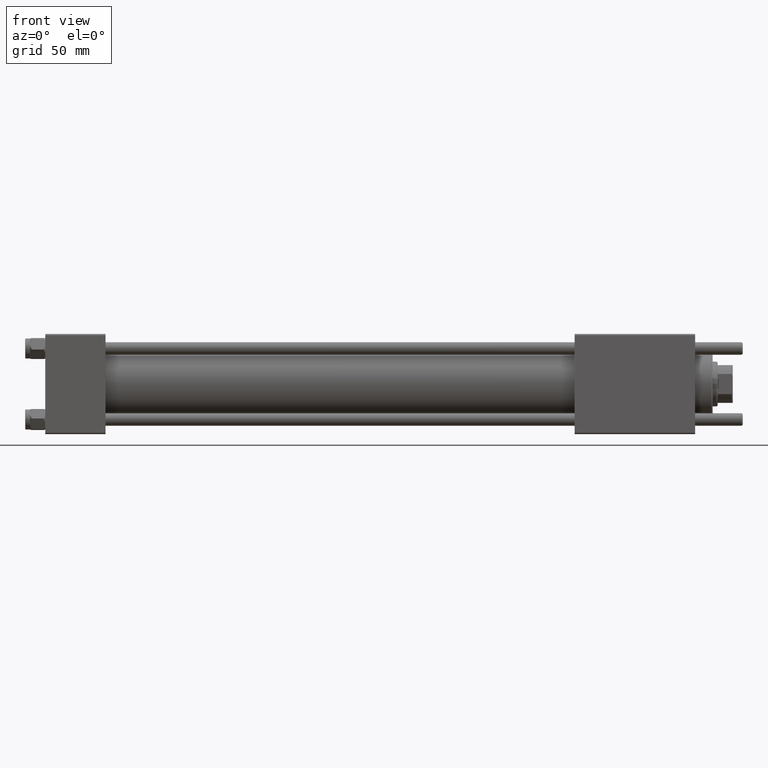
[diagram: clean part render]
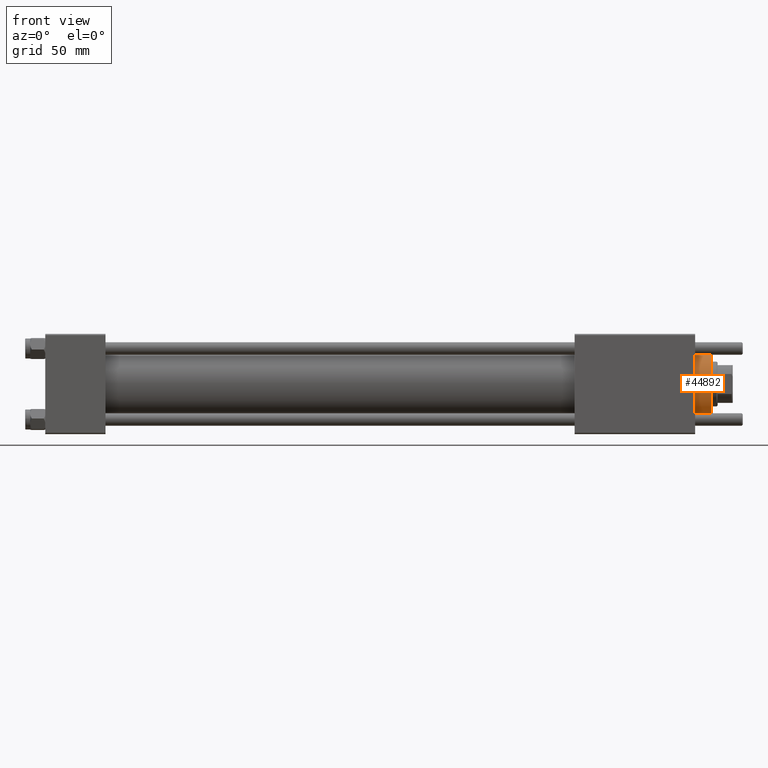
[diagram: same view with one face highlighted and labeled with its STEP entity id]
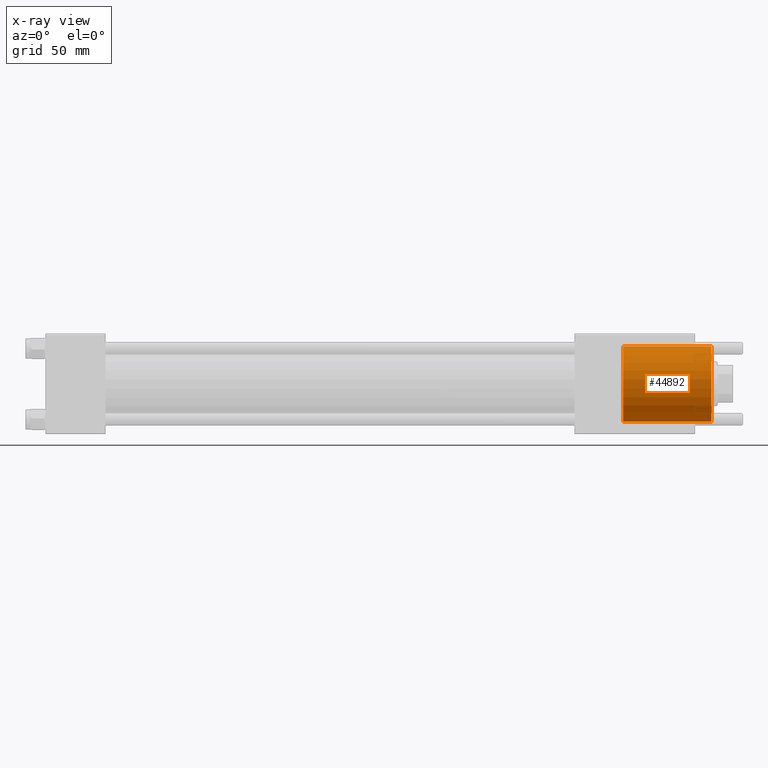
[diagram: x-ray of the same camera — body ghosted, the highlighted face saturated]
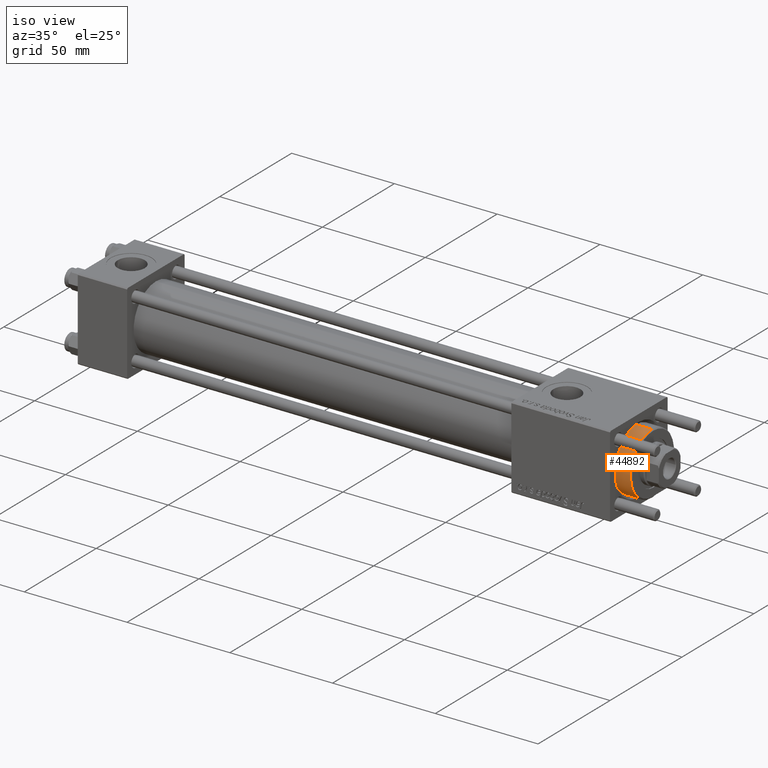
[diagram: same view with one face highlighted and labeled with its STEP entity id]
A machine part, front view. The second image highlights one B-rep face of the part: STEP entity #44892.
The next image is the same camera in x-ray: the body ghosted, the highlighted face saturated — about 0% of this face is hidden behind the body in this view.
A second angle (iso view) of the same face is appended — the face is thin or edge-on in the first view.
In plain terms, the highlighted cylindrical surface (partial cylindrical patch) has radius 15 mm, axis along (-1, -0, 0).
Its self-contained STEP definition (entity closure, byte-faithful):
#224 = VECTOR ( 'NONE', #24141, 1000.000000000000000 ) ;
#2925 = VECTOR ( 'NONE', #24694, 1000.000000000000000 ) ;
#8482 = ORIENTED_EDGE ( 'NONE', *, *, #28226, .T. ) ;
#10317 = CARTESIAN_POINT ( 'NONE',  ( 0.000000000000000000, 0.000000000000000000, 35.19999999999999574 ) ) ;
#11468 = DIRECTION ( 'NONE',  ( 1.000000000000000000, 0.000000000000000000, 0.000000000000000000 ) ) ;
#14013 = VERTEX_POINT ( 'NONE', #28919 ) ;
#14029 = CARTESIAN_POINT ( 'NONE',  ( 15.00000000000000000, 1.836970198721029589E-15, 35.19999999999999574 ) ) ;
#18495 = AXIS2_PLACEMENT_3D ( 'NONE', #37561, #20077, #11468 ) ;
#20077 = DIRECTION ( 'NONE',  ( 0.000000000000000000, 0.000000000000000000, 1.000000000000000000 ) ) ;
#20089 = ORIENTED_EDGE ( 'NONE', *, *, #43883, .F. ) ;
#22205 = AXIS2_PLACEMENT_3D ( 'NONE', #56127, #29740, #52384 ) ;
#22750 = CIRCLE ( 'NONE', #42921, 15.00000000000000000 ) ;
#24141 = DIRECTION ( 'NONE',  ( -0.000000000000000000, -0.000000000000000000, -1.000000000000000000 ) ) ;
#24386 = CARTESIAN_POINT ( 'NONE',  ( -15.00000000000000000, 0.000000000000000000, 35.19999999999999574 ) ) ;
#24538 = VERTEX_POINT ( 'NONE', #14029 ) ;
#24694 = DIRECTION ( 'NONE',  ( -0.000000000000000000, -0.000000000000000000, -1.000000000000000000 ) ) ;
#28092 = DIRECTION ( 'NONE',  ( 0.000000000000000000, 0.000000000000000000, -1.000000000000000000 ) ) ;
#28226 = EDGE_CURVE ( 'NONE', #24538, #52437, #22750, .T. ) ;
#28919 = CARTESIAN_POINT ( 'NONE',  ( -15.00000000000000000, 0.000000000000000000, 0.000000000000000000 ) ) ;
#29740 = DIRECTION ( 'NONE',  ( -0.000000000000000000, -0.000000000000000000, -1.000000000000000000 ) ) ;
#31956 = ORIENTED_EDGE ( 'NONE', *, *, #43100, .T. ) ;
#32748 = LINE ( 'NONE', #45644, #2925 ) ;
#33639 = ORIENTED_EDGE ( 'NONE', *, *, #44450, .T. ) ;
#34035 = EDGE_LOOP ( 'NONE', ( #20089, #8482, #31956, #33639 ) ) ;
#37561 = CARTESIAN_POINT ( 'NONE',  ( 0.000000000000000000, 0.000000000000000000, 0.000000000000000000 ) ) ;
#39461 = VERTEX_POINT ( 'NONE', #43826 ) ;
#40708 = DIRECTION ( 'NONE',  ( 1.000000000000000000, 0.000000000000000000, 0.000000000000000000 ) ) ;
#41639 = LINE ( 'NONE', #45657, #224 ) ;
#42337 = CIRCLE ( 'NONE', #18495, 15.00000000000000000 ) ;
#42921 = AXIS2_PLACEMENT_3D ( 'NONE', #10317, #28092, #40708 ) ;
#43100 = EDGE_CURVE ( 'NONE', #52437, #14013, #32748, .T. ) ;
#43210 = FACE_OUTER_BOUND ( 'NONE', #34035, .T. ) ;
#43826 = CARTESIAN_POINT ( 'NONE',  ( 15.00000000000000000, 1.836970198721029589E-15, 0.000000000000000000 ) ) ;
#43883 = EDGE_CURVE ( 'NONE', #24538, #39461, #41639, .T. ) ;
#44450 = EDGE_CURVE ( 'NONE', #14013, #39461, #42337, .T. ) ;
#44892 = ADVANCED_FACE ( 'NONE', ( #43210 ), #52662, .T. ) ;
#45644 = CARTESIAN_POINT ( 'NONE',  ( -15.00000000000000000, 0.000000000000000000, 28.69999999999999929 ) ) ;
#45657 = CARTESIAN_POINT ( 'NONE',  ( 15.00000000000000000, 1.836970198721029589E-15, 28.69999999999999929 ) ) ;
#52384 = DIRECTION ( 'NONE',  ( -1.000000000000000000, 0.000000000000000000, 0.000000000000000000 ) ) ;
#52437 = VERTEX_POINT ( 'NONE', #24386 ) ;
#52662 = CYLINDRICAL_SURFACE ( 'NONE', #22205, 15.00000000000000000 ) ;
#56127 = CARTESIAN_POINT ( 'NONE',  ( 0.000000000000000000, 0.000000000000000000, 28.69999999999999929 ) ) ;